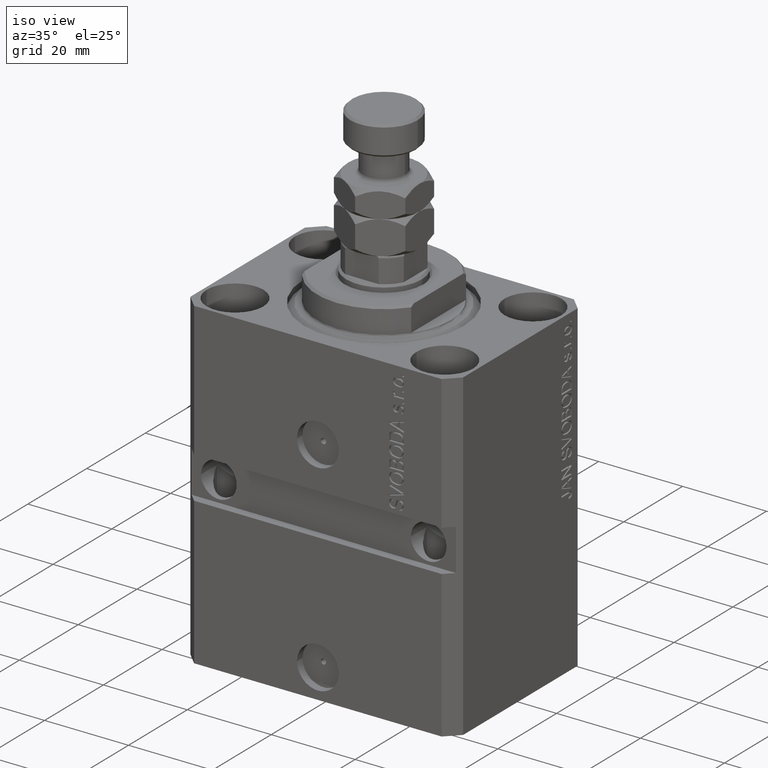
[diagram: clean part render]
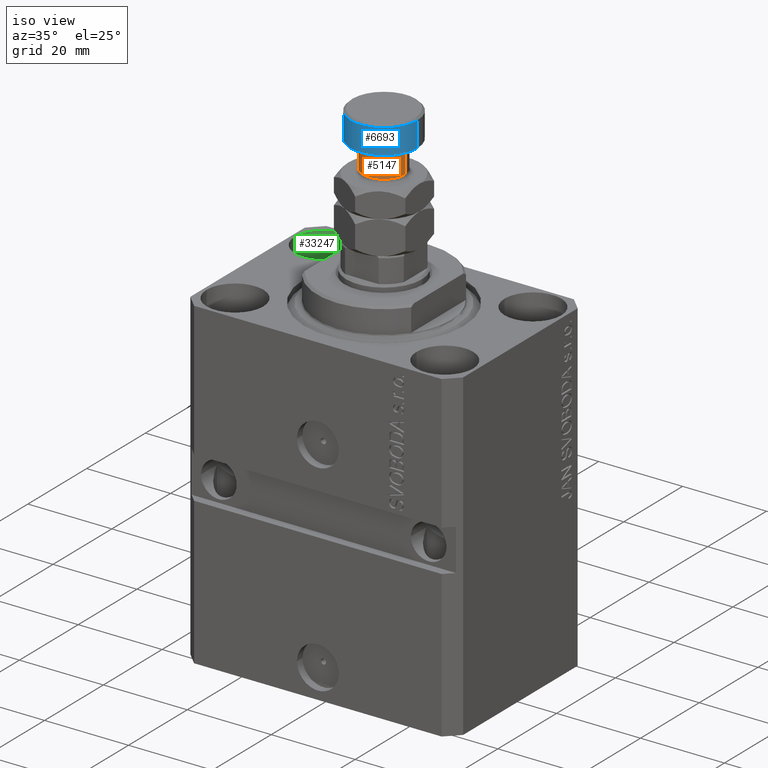
[diagram: same view with three faces highlighted in distinct colors, each labeled with its STEP entity id]
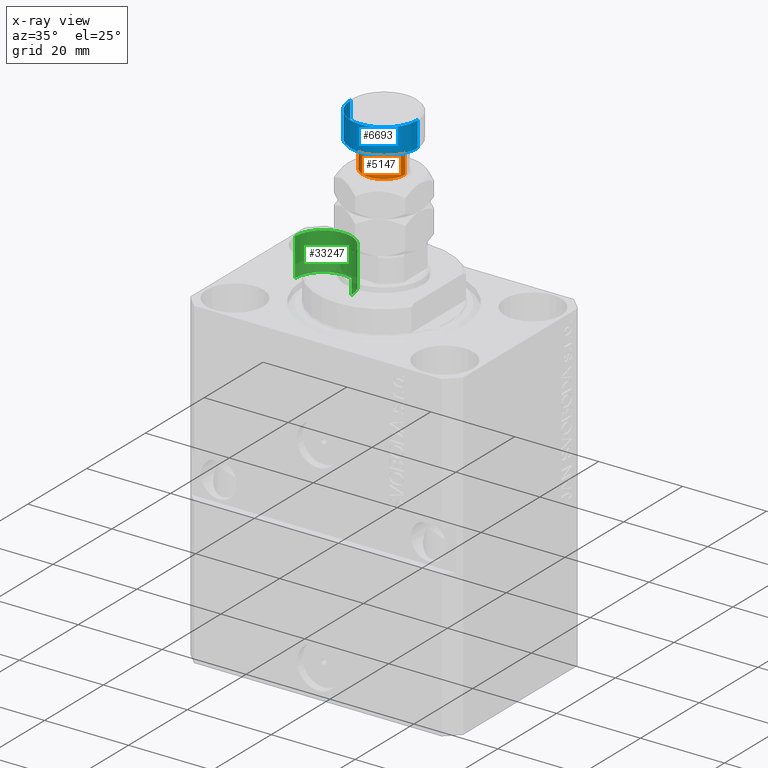
[diagram: x-ray of the same camera — body ghosted, the three highlighted faces saturated]
A machine part, iso view with three faces highlighted in distinct colors.
The next image is the same camera in x-ray (body ghosted, the three faces saturated) — at least one of them is partly hidden behind the body in this view.
Their STEP definitions:

[orange] entity #5147 — the highlighted cylindrical surface (edge-blend (fillet) strip) has radius 5 mm, axis along (-0, -0, -1).
#1035 = ORIENTED_EDGE ( 'NONE', *, *, #29306, .T. ) ;
#1263 = CARTESIAN_POINT ( 'NONE',  ( 5.000000000000000000, 6.123233995736766282E-16, 15.00000000000000000 ) ) ;
#1851 = LINE ( 'NONE', #26087, #31412 ) ;
#2665 = EDGE_CURVE ( 'NONE', #38566, #13581, #13222, .T. ) ;
#2736 = CARTESIAN_POINT ( 'NONE',  ( 5.000000000000000000, 6.123233995736766282E-16, 20.00000000000000000 ) ) ;
#3965 = LINE ( 'NONE', #7000, #23599 ) ;
#4303 = CARTESIAN_POINT ( 'NONE',  ( 0.000000000000000000, 0.000000000000000000, 20.00000000000000000 ) ) ;
#4758 = EDGE_CURVE ( 'NONE', #33426, #13581, #3965, .T. ) ;
#5147 = ADVANCED_FACE ( 'NONE', ( #17864 ), #13903, .T. ) ;
#6718 = DIRECTION ( 'NONE',  ( -0.000000000000000000, -0.000000000000000000, -1.000000000000000000 ) ) ;
#7000 = CARTESIAN_POINT ( 'NONE',  ( 5.000000000000000000, 6.123233995736766282E-16, 21.00000000000000000 ) ) ;
#7254 = AXIS2_PLACEMENT_3D ( 'NONE', #31419, #6718, #18092 ) ;
#7559 = DIRECTION ( 'NONE',  ( -0.000000000000000000, -0.000000000000000000, -1.000000000000000000 ) ) ;
#9039 = DIRECTION ( 'NONE',  ( -0.000000000000000000, -0.000000000000000000, -1.000000000000000000 ) ) ;
#9195 = EDGE_LOOP ( 'NONE', ( #14801, #38605, #1035, #17370 ) ) ;
#11132 = CARTESIAN_POINT ( 'NONE',  ( -5.000000000000000000, 0.000000000000000000, 20.00000000000000000 ) ) ;
#13222 = CIRCLE ( 'NONE', #25920, 5.000000000000000000 ) ;
#13581 = VERTEX_POINT ( 'NONE', #1263 ) ;
#13903 = CYLINDRICAL_SURFACE ( 'NONE', #7254, 5.000000000000000000 ) ;
#14751 = DIRECTION ( 'NONE',  ( 1.000000000000000000, 0.000000000000000000, 0.000000000000000000 ) ) ;
#14801 = ORIENTED_EDGE ( 'NONE', *, *, #4758, .F. ) ;
#17370 = ORIENTED_EDGE ( 'NONE', *, *, #2665, .T. ) ;
#17864 = FACE_OUTER_BOUND ( 'NONE', #9195, .T. ) ;
#18092 = DIRECTION ( 'NONE',  ( -1.000000000000000000, 0.000000000000000000, 0.000000000000000000 ) ) ;
#20233 = CIRCLE ( 'NONE', #32918, 5.000000000000000000 ) ;
#21752 = DIRECTION ( 'NONE',  ( 1.000000000000000000, 0.000000000000000000, 0.000000000000000000 ) ) ;
#23599 = VECTOR ( 'NONE', #31473, 1000.000000000000000 ) ;
#25920 = AXIS2_PLACEMENT_3D ( 'NONE', #35985, #32478, #14751 ) ;
#26087 = CARTESIAN_POINT ( 'NONE',  ( -5.000000000000000000, 0.000000000000000000, 21.00000000000000000 ) ) ;
#29306 = EDGE_CURVE ( 'NONE', #35829, #38566, #1851, .T. ) ;
#30487 = EDGE_CURVE ( 'NONE', #33426, #35829, #20233, .T. ) ;
#31412 = VECTOR ( 'NONE', #9039, 1000.000000000000000 ) ;
#31419 = CARTESIAN_POINT ( 'NONE',  ( 0.000000000000000000, 0.000000000000000000, 21.00000000000000000 ) ) ;
#31473 = DIRECTION ( 'NONE',  ( -0.000000000000000000, -0.000000000000000000, -1.000000000000000000 ) ) ;
#32478 = DIRECTION ( 'NONE',  ( 0.000000000000000000, -0.000000000000000000, 1.000000000000000000 ) ) ;
#32918 = AXIS2_PLACEMENT_3D ( 'NONE', #4303, #7559, #21752 ) ;
#33426 = VERTEX_POINT ( 'NONE', #2736 ) ;
#35829 = VERTEX_POINT ( 'NONE', #11132 ) ;
#35985 = CARTESIAN_POINT ( 'NONE',  ( 0.000000000000000000, 0.000000000000000000, 15.00000000000000000 ) ) ;
#38566 = VERTEX_POINT ( 'NONE', #39162 ) ;
#38605 = ORIENTED_EDGE ( 'NONE', *, *, #30487, .T. ) ;
#39162 = CARTESIAN_POINT ( 'NONE',  ( -5.000000000000000000, 0.000000000000000000, 15.00000000000000000 ) ) ;

[blue] entity #6693 — the highlighted cylindrical surface (partial cylindrical patch) has radius 8 mm, axis along (-0, -0, -1).
#3682 = LINE ( 'NONE', #24636, #41550 ) ;
#5001 = ORIENTED_EDGE ( 'NONE', *, *, #37082, .F. ) ;
#5196 = DIRECTION ( 'NONE',  ( -0.000000000000000000, -0.000000000000000000, 1.000000000000000000 ) ) ;
#5366 = CIRCLE ( 'NONE', #12800, 8.000000000000000000 ) ;
#5648 = DIRECTION ( 'NONE',  ( -0.000000000000000000, -0.000000000000000000, -1.000000000000000000 ) ) ;
#6693 = ADVANCED_FACE ( 'NONE', ( #24058 ), #38285, .T. ) ;
#7022 = EDGE_CURVE ( 'NONE', #13861, #44089, #3682, .T. ) ;
#8519 = CARTESIAN_POINT ( 'NONE',  ( 8.000000000000000000, 9.797174393178825657E-16, 21.50000000000000711 ) ) ;
#12622 = LINE ( 'NONE', #29892, #43437 ) ;
#12800 = AXIS2_PLACEMENT_3D ( 'NONE', #22436, #5196, #23347 ) ;
#13861 = VERTEX_POINT ( 'NONE', #35691 ) ;
#17547 = AXIS2_PLACEMENT_3D ( 'NONE', #18294, #32752, #26619 ) ;
#18294 = CARTESIAN_POINT ( 'NONE',  ( 0.000000000000000000, 0.000000000000000000, 27.50000000000000000 ) ) ;
#18691 = VERTEX_POINT ( 'NONE', #26780 ) ;
#20753 = VERTEX_POINT ( 'NONE', #8519 ) ;
#20932 = EDGE_CURVE ( 'NONE', #44089, #20753, #5366, .T. ) ;
#22436 = CARTESIAN_POINT ( 'NONE',  ( 0.000000000000000000, 0.000000000000000000, 21.50000000000000711 ) ) ;
#23347 = DIRECTION ( 'NONE',  ( 1.000000000000000000, 0.000000000000000000, 0.000000000000000000 ) ) ;
#24058 = FACE_OUTER_BOUND ( 'NONE', #27342, .T. ) ;
#24636 = CARTESIAN_POINT ( 'NONE',  ( -8.000000000000000000, 0.000000000000000000, 28.00000000000000000 ) ) ;
#26619 = DIRECTION ( 'NONE',  ( 1.000000000000000000, 0.000000000000000000, 0.000000000000000000 ) ) ;
#26780 = CARTESIAN_POINT ( 'NONE',  ( 8.000000000000000000, 9.797174393178825657E-16, 27.50000000000000000 ) ) ;
#27342 = EDGE_LOOP ( 'NONE', ( #5001, #35796, #35968, #27862 ) ) ;
#27862 = ORIENTED_EDGE ( 'NONE', *, *, #20932, .T. ) ;
#29892 = CARTESIAN_POINT ( 'NONE',  ( 8.000000000000000000, 9.797174393178825657E-16, 28.00000000000000000 ) ) ;
#31047 = CARTESIAN_POINT ( 'NONE',  ( 0.000000000000000000, 0.000000000000000000, 28.00000000000000000 ) ) ;
#32752 = DIRECTION ( 'NONE',  ( 0.000000000000000000, 0.000000000000000000, -1.000000000000000000 ) ) ;
#35691 = CARTESIAN_POINT ( 'NONE',  ( -8.000000000000000000, 0.000000000000000000, 27.50000000000000000 ) ) ;
#35796 = ORIENTED_EDGE ( 'NONE', *, *, #43030, .T. ) ;
#35968 = ORIENTED_EDGE ( 'NONE', *, *, #7022, .T. ) ;
#37082 = EDGE_CURVE ( 'NONE', #18691, #20753, #12622, .T. ) ;
#37577 = DIRECTION ( 'NONE',  ( -0.000000000000000000, -0.000000000000000000, -1.000000000000000000 ) ) ;
#37631 = CIRCLE ( 'NONE', #17547, 8.000000000000000000 ) ;
#38285 = CYLINDRICAL_SURFACE ( 'NONE', #43010, 8.000000000000000000 ) ;
#39549 = DIRECTION ( 'NONE',  ( -0.000000000000000000, -0.000000000000000000, -1.000000000000000000 ) ) ;
#39949 = CARTESIAN_POINT ( 'NONE',  ( -8.000000000000000000, 0.000000000000000000, 21.50000000000000711 ) ) ;
#41309 = DIRECTION ( 'NONE',  ( -1.000000000000000000, 0.000000000000000000, 0.000000000000000000 ) ) ;
#41550 = VECTOR ( 'NONE', #39549, 1000.000000000000000 ) ;
#43010 = AXIS2_PLACEMENT_3D ( 'NONE', #31047, #37577, #41309 ) ;
#43030 = EDGE_CURVE ( 'NONE', #18691, #13861, #37631, .T. ) ;
#43437 = VECTOR ( 'NONE', #5648, 1000.000000000000000 ) ;
#44089 = VERTEX_POINT ( 'NONE', #39949 ) ;

[green] entity #33247 — the highlighted cylindrical surface (edge-blend (fillet) strip) has radius 6.75 mm, axis along (0, 0, 1).
#43 = DIRECTION ( 'NONE',  ( -0.000000000000000000, -0.000000000000000000, 1.000000000000000000 ) ) ;
#755 = EDGE_CURVE ( 'NONE', #28195, #37365, #28797, .T. ) ;
#958 = VECTOR ( 'NONE', #43, 1000.000000000000000 ) ;
#2329 = CIRCLE ( 'NONE', #14936, 6.750000000022533087 ) ;
#3916 = CARTESIAN_POINT ( 'NONE',  ( -18.24999999997747224, 15.00000000000000000, -9.000000000000000000 ) ) ;
#5186 = VERTEX_POINT ( 'NONE', #3916 ) ;
#7171 = CARTESIAN_POINT ( 'NONE',  ( -18.24999999997747224, 15.00000000000000000, 0.000000000000000000 ) ) ;
#8006 = DIRECTION ( 'NONE',  ( 0.000000000000000000, 0.000000000000000000, 1.000000000000000000 ) ) ;
#8710 = CARTESIAN_POINT ( 'NONE',  ( -25.00000000000000355, 15.00000000000000000, 0.000000000000000000 ) ) ;
#11129 = FACE_OUTER_BOUND ( 'NONE', #25130, .T. ) ;
#13635 = EDGE_CURVE ( 'NONE', #5186, #30945, #2329, .T. ) ;
#14026 = CARTESIAN_POINT ( 'NONE',  ( -18.24999999997747224, 15.00000000000000000, -9.000000000000000000 ) ) ;
#14936 = AXIS2_PLACEMENT_3D ( 'NONE', #43658, #8006, #22657 ) ;
#17697 = CARTESIAN_POINT ( 'NONE',  ( -31.75000000002253842, 15.00000000000000000, -9.000000000000000000 ) ) ;
#18560 = CARTESIAN_POINT ( 'NONE',  ( -25.00000000000000355, 15.00000000000000000, -9.000000000000000000 ) ) ;
#19503 = CARTESIAN_POINT ( 'NONE',  ( -31.75000000002253842, 15.00000000000000000, 0.000000000000000000 ) ) ;
#20331 = LINE ( 'NONE', #14026, #28785 ) ;
#22657 = DIRECTION ( 'NONE',  ( 1.000000000000000000, 0.000000000000000000, 0.000000000000000000 ) ) ;
#23708 = ORIENTED_EDGE ( 'NONE', *, *, #755, .T. ) ;
#24266 = CARTESIAN_POINT ( 'NONE',  ( -31.75000000002253842, 15.00000000000000000, -9.000000000000000000 ) ) ;
#24720 = LINE ( 'NONE', #24266, #958 ) ;
#25130 = EDGE_LOOP ( 'NONE', ( #30086, #41373, #32784, #23708 ) ) ;
#27817 = AXIS2_PLACEMENT_3D ( 'NONE', #18560, #36069, #39576 ) ;
#28195 = VERTEX_POINT ( 'NONE', #7171 ) ;
#28785 = VECTOR ( 'NONE', #35253, 1000.000000000000000 ) ;
#28797 = CIRCLE ( 'NONE', #34763, 6.750000000022533087 ) ;
#29819 = EDGE_CURVE ( 'NONE', #30945, #37365, #24720, .T. ) ;
#30086 = ORIENTED_EDGE ( 'NONE', *, *, #29819, .F. ) ;
#30945 = VERTEX_POINT ( 'NONE', #17697 ) ;
#32784 = ORIENTED_EDGE ( 'NONE', *, *, #45583, .T. ) ;
#33247 = ADVANCED_FACE ( 'NONE', ( #11129 ), #40497, .F. ) ;
#34763 = AXIS2_PLACEMENT_3D ( 'NONE', #8710, #40209, #44594 ) ;
#35253 = DIRECTION ( 'NONE',  ( -0.000000000000000000, -0.000000000000000000, 1.000000000000000000 ) ) ;
#36069 = DIRECTION ( 'NONE',  ( -0.000000000000000000, -0.000000000000000000, 1.000000000000000000 ) ) ;
#37365 = VERTEX_POINT ( 'NONE', #19503 ) ;
#39576 = DIRECTION ( 'NONE',  ( 1.000000000000000000, 0.000000000000000000, 0.000000000000000000 ) ) ;
#40209 = DIRECTION ( 'NONE',  ( 0.000000000000000000, 0.000000000000000000, 1.000000000000000000 ) ) ;
#40497 = CYLINDRICAL_SURFACE ( 'NONE', #27817, 6.750000000022533087 ) ;
#41373 = ORIENTED_EDGE ( 'NONE', *, *, #13635, .F. ) ;
#43658 = CARTESIAN_POINT ( 'NONE',  ( -25.00000000000000355, 15.00000000000000000, -9.000000000000000000 ) ) ;
#44594 = DIRECTION ( 'NONE',  ( 1.000000000000000000, 0.000000000000000000, 0.000000000000000000 ) ) ;
#45583 = EDGE_CURVE ( 'NONE', #5186, #28195, #20331, .T. ) ;